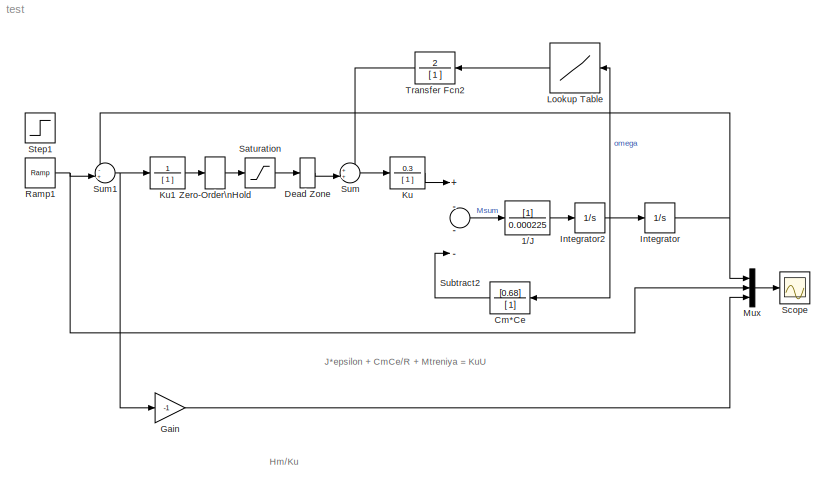
MODEL test
KIND model
BLOCK [TransferFcn] 1//J
  Denominator = 0.000225
BLOCK [TransferFcn] Cm*Ce
  Denominator = [ 1]
  Numerator = [0.68]
BLOCK [DeadZone] Dead Zone
BLOCK [Gain] Gain
  Gain = -1
  OutDataType = fixdt(1, 16)
  OutDataTypeMode = Inherit via internal rule
  OutDataTypeStr = Inherit: Inherit via internal rule
  OutScaling = 2^0
  ParamDataTypeStr = Inherit: Inherit via internal rule
  ParameterDataType = fixdt(1, 16)
  ParameterDataTypeMode = Inherit via internal rule
  ParameterScaling = 2^0
  SaturateOnIntegerOverflow = off
BLOCK [Integrator] Integrator
  Ports = [1, 1]
BLOCK [Integrator] Integrator2
  Ports = [1, 1]
BLOCK [TransferFcn] Ku
  Denominator = [ 1 ]
  Numerator = 0.3
BLOCK [TransferFcn] Ku1
  Denominator = [ 1 ]
  Numerator = 1
BLOCK [Lookup] Lookup Table
  InputValues = [-5:5]
  OutDataType = fixdt(1, 16)
  OutScaling = 2^0
  SaturateOnIntegerOverflow = off
  Table = tanh(10*[-5:5])
BLOCK [Mux] Mux
  DisplayOption = bar
  Inputs = 3
  Ports = [3, 1]
BLOCK [Reference] Ramp1  REF=simulink/Sources/Ramp
  FunctionWithSeparateData = off
  Ports = [0, 1]
  RTWMemSecDataConstants = Inherit from model
  RTWMemSecDataInternal = Inherit from model
  RTWMemSecDataParameters = Inherit from model
  RTWMemSecFuncExecute = Inherit from model
  RTWMemSecFuncInitTerm = Inherit from model
  ShowPortLabels = FromPortIcon
  SourceBlock = simulink/Sources/Ramp
  SourceType = Ramp
  SystemSampleTime = -1
  VectorParams1D = on
  X0 = 0
  slope = -1
  start = 0
BLOCK [Saturate] Saturation
  LowerLimit = -10
  UpperLimit = 10
BLOCK [Scope] Scope
  DataFormat = StructureWithTime
  Floating = off
  MaxDataPoints = 50000
  NumInputPorts = 1
  Ports = [1]
  SampleTime = 0
  ZoomMode = yonly
BLOCK [Step] Step1
  SampleTime = 0
BLOCK [Sum] Subtract2
  InputSameDT = off
  Inputs = +---
  OutDataTypeMode = Inherit via internal rule
  OutDataTypeStr = Inherit: Inherit via internal rule
  Ports = [4, 1]
  SaturateOnIntegerOverflow = off
BLOCK [Sum] Sum
  IconShape = round
  InputSameDT = off
  Inputs = ++|
  OutDataType = fixdt(1, 16)
  OutDataTypeMode = Inherit via internal rule
  OutDataTypeStr = Inherit: Inherit via internal rule
  OutScaling = 2^0
  Ports = [2, 1]
  SaturateOnIntegerOverflow = off
BLOCK [Sum] Sum1
  IconShape = round
  InputSameDT = off
  Inputs = -+|
  OutDataType = fixdt(1, 16)
  OutDataTypeMode = Inherit via internal rule
  OutDataTypeStr = Inherit: Inherit via internal rule
  OutScaling = 2^0
  Ports = [2, 1]
  SaturateOnIntegerOverflow = off
BLOCK [TransferFcn] Transfer Fcn2
  Denominator = [ 1 ]
  Numerator = 2
BLOCK [ZeroOrderHold] Zero-Order\nHold
  SampleTime = 1/1000
ANNOTATION (root): Hm/Ku
ANNOTATION (root): J*epsilon + CmCe/R + Mtreniya = KuU
LINE 1//J:1 -> Integrator2:1
LINE Cm*Ce:1 -> Subtract2:4
LINE Dead Zone:1 -> Sum:2
LINE Gain:1 -> Mux:3
NET Integrator2:1 -> Cm*Ce:1, Integrator:1, Lookup Table:1
NET Integrator:1 -> Mux:1, Sum1:1
LINE Ku1:1 -> Zero-Order\nHold:1
LINE Ku:1 -> Subtract2:1
LINE Lookup Table:1 -> Transfer Fcn2:1
LINE Mux:1 -> Scope:1
NET Ramp1:1 -> Mux:2, Sum1:2
LINE Saturation:1 -> Dead Zone:1
LINE Subtract2:1 -> 1//J:1
NET Sum1:1 -> Gain:1, Ku1:1
LINE Sum:1 -> Ku:1
LINE Transfer Fcn2:1 -> Sum:1
LINE Zero-Order\nHold:1 -> Saturation:1
note: NET lines group one-source signal fan-out (src -> all destinations, sorted); 1:1 wires keep LINE
